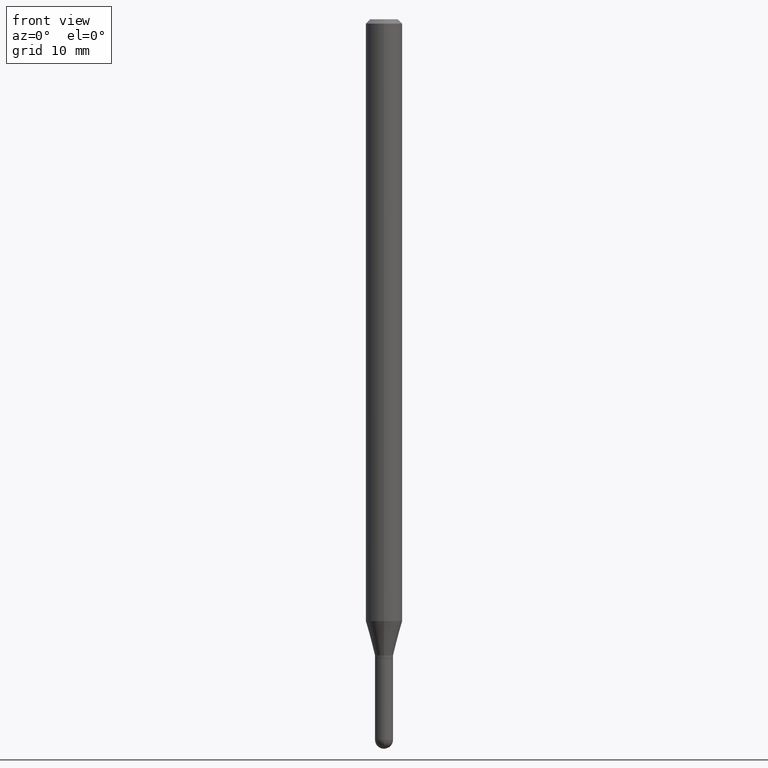
[diagram: clean part render]
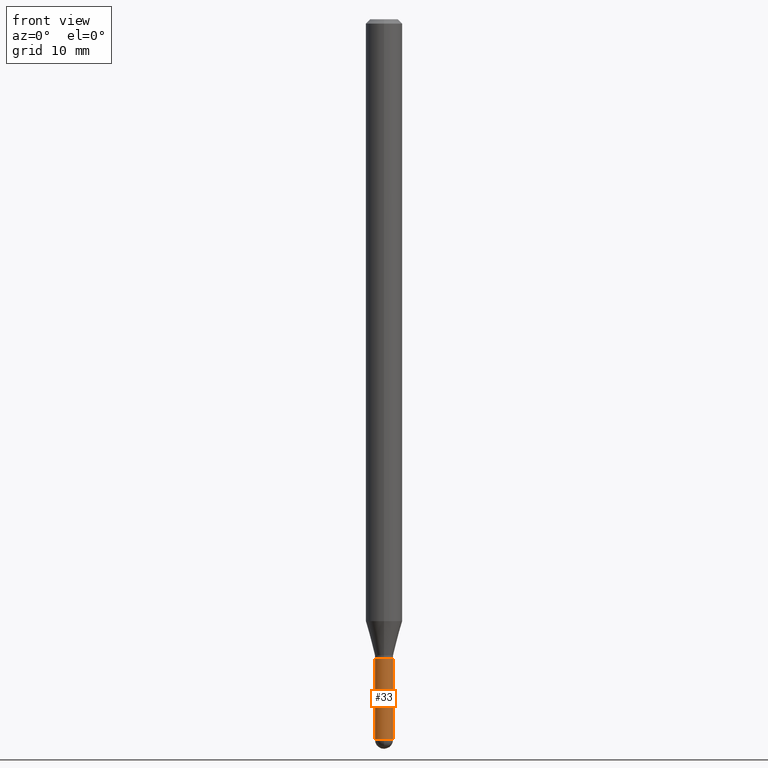
[diagram: same view with one face highlighted and labeled with its STEP entity id]
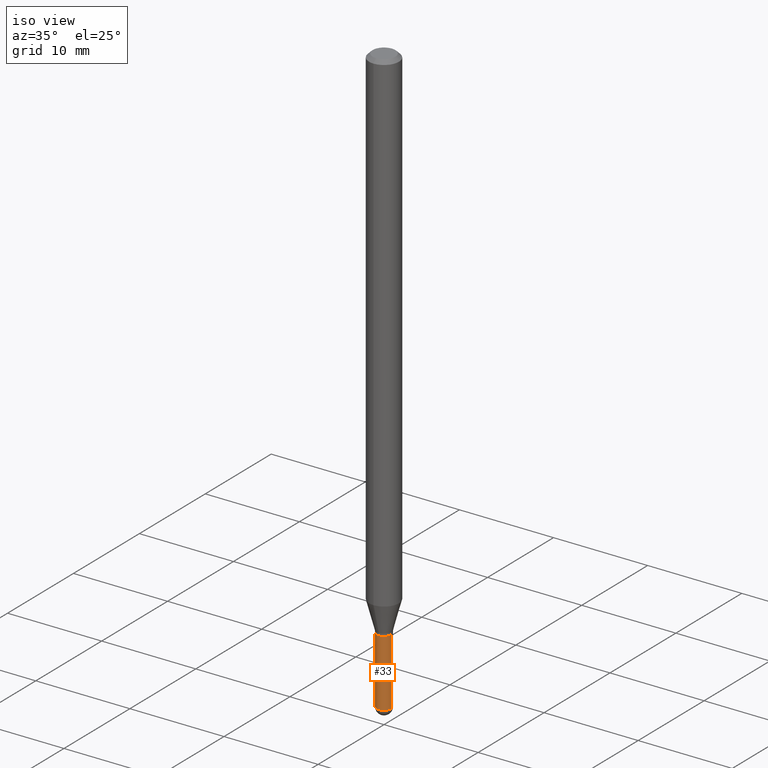
[diagram: same view with one face highlighted and labeled with its STEP entity id]
A machine part, front view. The second image highlights one B-rep face of the part: STEP entity #33.
A second angle (iso view) of the same face is appended — the face is thin or edge-on in the first view.
In plain terms, the highlighted cylindrical surface (edge-blend (fillet) strip) has radius 0.7874 mm, axis along (-0, 0, 1).
Its self-contained STEP definition (entity closure, byte-faithful):
#15 = DIRECTION ( 'NONE',  ( 1.000000000000000000, -6.982962677686270655E-15, 0.000000000000000000 ) ) ;
#23 = EDGE_CURVE ( 'NONE', #309, #37, #227, .T. ) ;
#25 = DIRECTION ( 'NONE',  ( -2.445468806185136597E-29, 3.491481338843145583E-15, 1.000000000000000000 ) ) ;
#30 = CIRCLE ( 'NONE', #239, 0.03099999999999999978 ) ;
#33 = ADVANCED_FACE ( 'NONE', ( #510 ), #184, .T. ) ;
#37 = VERTEX_POINT ( 'NONE', #300 ) ;
#63 = VERTEX_POINT ( 'NONE', #179 ) ;
#71 = EDGE_LOOP ( 'NONE', ( #157, #265, #199, #80, #162 ) ) ;
#73 = CARTESIAN_POINT ( 'NONE',  ( 0.03099999999999999978, -2.164718430082742572E-16, 1.511614800496739984E-30 ) ) ;
#75 = CARTESIAN_POINT ( 'NONE',  ( -0.03099999999999999978, -7.913137530749477307E-15, -2.469000000000000306 ) ) ;
#80 = ORIENTED_EDGE ( 'NONE', *, *, #23, .T. ) ;
#93 = CARTESIAN_POINT ( 'NONE',  ( 0.03099999999999999978, -8.349877621843383680E-15, -2.469000000000000306 ) ) ;
#94 = DIRECTION ( 'NONE',  ( 1.000000000000000000, -6.982962677686270655E-15, 0.000000000000000000 ) ) ;
#106 = DIRECTION ( 'NONE',  ( 1.000000000000000000, -6.982962677686266711E-15, 4.876176775795935232E-29 ) ) ;
#129 = CARTESIAN_POINT ( 'NONE',  ( 6.037862482471103495E-29, -8.620467425603728566E-15, -2.469000000000000306 ) ) ;
#154 = CARTESIAN_POINT ( 'NONE',  ( 0.000000000000000000, 0.000000000000000000, 0.000000000000000000 ) ) ;
#157 = ORIENTED_EDGE ( 'NONE', *, *, #169, .F. ) ;
#162 = ORIENTED_EDGE ( 'NONE', *, *, #376, .F. ) ;
#169 = EDGE_CURVE ( 'NONE', #397, #63, #204, .T. ) ;
#179 = CARTESIAN_POINT ( 'NONE',  ( -0.03099999999999999978, -7.913137530749477307E-15, -2.189999999999999947 ) ) ;
#180 = VECTOR ( 'NONE', #258, 39.37007874015748143 ) ;
#184 = CYLINDRICAL_SURFACE ( 'NONE', #484, 0.03099999999999999978 ) ;
#185 = DIRECTION ( 'NONE',  ( 1.000000000000000000, -6.982962677686270655E-15, 0.000000000000000000 ) ) ;
#199 = ORIENTED_EDGE ( 'NONE', *, *, #250, .T. ) ;
#204 = LINE ( 'NONE', #446, #298 ) ;
#210 = CIRCLE ( 'NONE', #219, 0.03099999999999999978 ) ;
#218 = DIRECTION ( 'NONE',  ( -2.445468806185136597E-29, 3.491481338843145583E-15, 1.000000000000000000 ) ) ;
#219 = AXIS2_PLACEMENT_3D ( 'NONE', #247, #402, #15 ) ;
#227 = LINE ( 'NONE', #73, #180 ) ;
#229 = VERTEX_POINT ( 'NONE', #455 ) ;
#239 = AXIS2_PLACEMENT_3D ( 'NONE', #379, #25, #185 ) ;
#247 = CARTESIAN_POINT ( 'NONE',  ( 6.037862482471103495E-29, -8.620467425603728566E-15, -2.469000000000000306 ) ) ;
#250 = EDGE_CURVE ( 'NONE', #229, #309, #261, .T. ) ;
#258 = DIRECTION ( 'NONE',  ( -2.445468806185136877E-29, 3.491481338843145188E-15, 1.000000000000000000 ) ) ;
#261 = CIRCLE ( 'NONE', #307, 0.03099999999999999978 ) ;
#265 = ORIENTED_EDGE ( 'NONE', *, *, #310, .T. ) ;
#281 = DIRECTION ( 'NONE',  ( -2.445468806185136877E-29, 3.491481338843145188E-15, 1.000000000000000000 ) ) ;
#298 = VECTOR ( 'NONE', #281, 39.37007874015748143 ) ;
#300 = CARTESIAN_POINT ( 'NONE',  ( 0.03099999999999999978, -7.862815975074762885E-15, -2.189999999999999947 ) ) ;
#307 = AXIS2_PLACEMENT_3D ( 'NONE', #129, #447, #94 ) ;
#309 = VERTEX_POINT ( 'NONE', #93 ) ;
#310 = EDGE_CURVE ( 'NONE', #397, #229, #210, .T. ) ;
#376 = EDGE_CURVE ( 'NONE', #63, #37, #30, .T. ) ;
#379 = CARTESIAN_POINT ( 'NONE',  ( 5.355576685545449192E-29, -7.646344132066488554E-15, -2.189999999999999947 ) ) ;
#397 = VERTEX_POINT ( 'NONE', #75 ) ;
#402 = DIRECTION ( 'NONE',  ( -2.445468806185136597E-29, 3.491481338843145583E-15, 1.000000000000000000 ) ) ;
#446 = CARTESIAN_POINT ( 'NONE',  ( -0.03099999999999999978, 2.202682480856310560E-16, -1.524869877979020612E-30 ) ) ;
#447 = DIRECTION ( 'NONE',  ( -2.445468806185136597E-29, 3.491481338843145583E-15, 1.000000000000000000 ) ) ;
#455 = CARTESIAN_POINT ( 'NONE',  ( -2.202682480855702151E-16, -0.03100000000000856237, -2.469000000000000306 ) ) ;
#484 = AXIS2_PLACEMENT_3D ( 'NONE', #154, #218, #106 ) ;
#510 = FACE_OUTER_BOUND ( 'NONE', #71, .T. ) ;